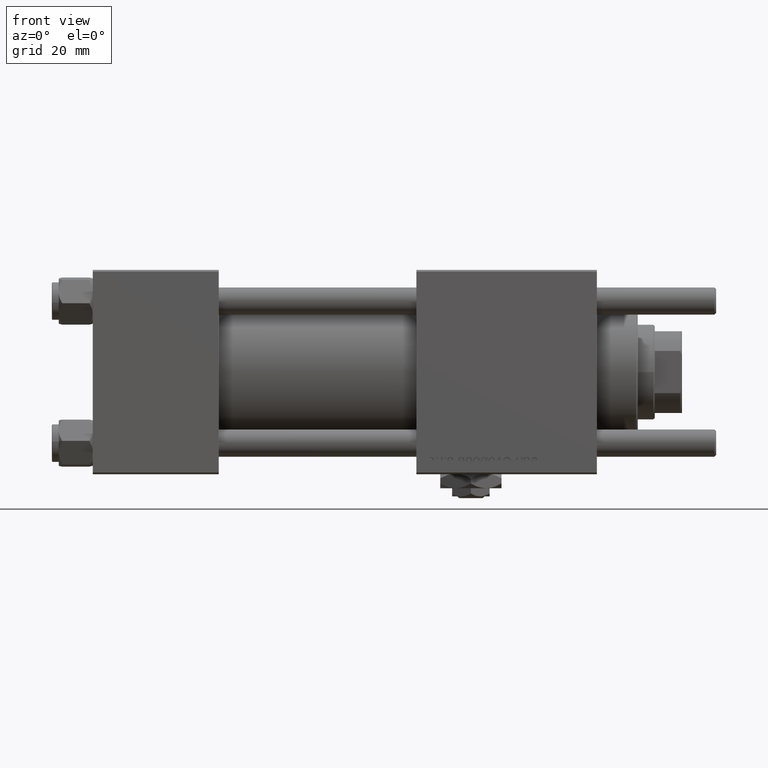
[diagram: clean part render]
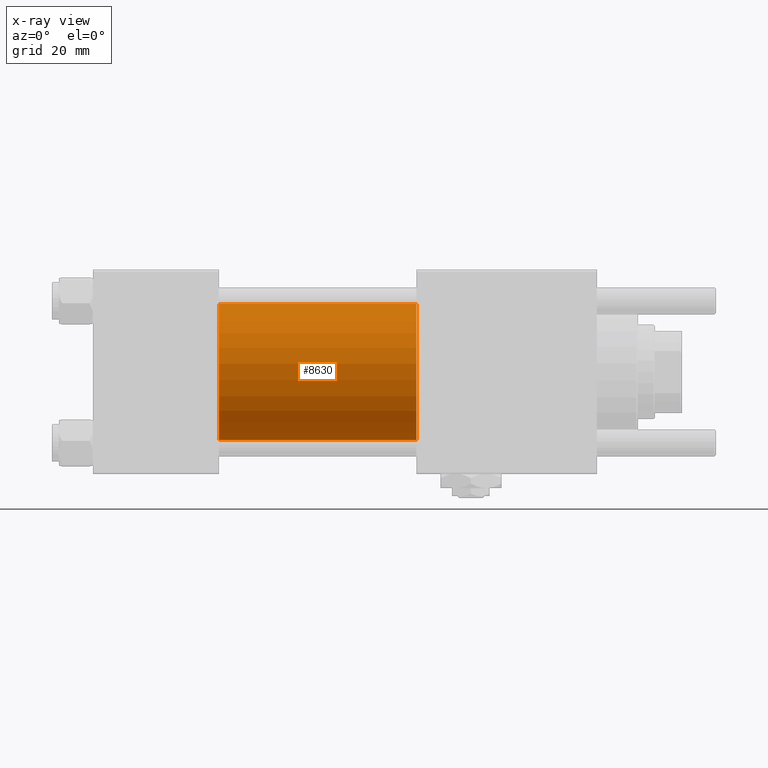
[diagram: x-ray — body ghosted, one internal face saturated and labeled with its STEP entity id]
A machine part, front view, then the same camera in x-ray: the body is ghosted and one INTERNAL B-rep face — a face not visible from any outside direction — is saturated and labeled: STEP entity #8630.
In plain terms, the highlighted cylindrical surface (partial cylindrical patch) has radius 20 mm, axis along (-1, -0, -0).
Its self-contained STEP definition (entity closure, byte-faithful):
#315 = CYLINDRICAL_SURFACE ( 'NONE', #57440, 20.00000000000000000 ) ;
#1132 = EDGE_CURVE ( 'NONE', #11039, #28172, #49827, .T. ) ;
#1426 = VERTEX_POINT ( 'NONE', #14140 ) ;
#1935 = ORIENTED_EDGE ( 'NONE', *, *, #1132, .F. ) ;
#4720 = DIRECTION ( 'NONE',  ( -1.000000000000000000, -0.000000000000000000, -0.000000000000000000 ) ) ;
#5926 = DIRECTION ( 'NONE',  ( 1.000000000000000000, 0.000000000000000000, 0.000000000000000000 ) ) ;
#5951 = CIRCLE ( 'NONE', #6971, 20.00000000000000000 ) ;
#6971 = AXIS2_PLACEMENT_3D ( 'NONE', #29022, #47155, #46578 ) ;
#7946 = EDGE_CURVE ( 'NONE', #11039, #9077, #48880, .T. ) ;
#8630 = ADVANCED_FACE ( 'NONE', ( #23736 ), #315, .F. ) ;
#9077 = VERTEX_POINT ( 'NONE', #41414 ) ;
#9267 = CARTESIAN_POINT ( 'NONE',  ( 95.00000000000000000, -2.602085213965210642E-15, 20.00000000000000000 ) ) ;
#10066 = CARTESIAN_POINT ( 'NONE',  ( 95.00000000000000000, -2.602085213965210642E-15, 20.00000000000000000 ) ) ;
#11039 = VERTEX_POINT ( 'NONE', #9267 ) ;
#13477 = CARTESIAN_POINT ( 'NONE',  ( 95.00000000000000000, -1.527916156705046464E-16, -20.00000000000000000 ) ) ;
#14140 = CARTESIAN_POINT ( 'NONE',  ( 37.00000000000000000, -1.527916156705046464E-16, -20.00000000000000000 ) ) ;
#14257 = CARTESIAN_POINT ( 'NONE',  ( 95.00000000000000000, -2.602085213965210642E-15, 0.000000000000000000 ) ) ;
#18063 = ORIENTED_EDGE ( 'NONE', *, *, #7946, .T. ) ;
#18207 = LINE ( 'NONE', #13477, #55461 ) ;
#19433 = VECTOR ( 'NONE', #4720, 1000.000000000000000 ) ;
#22646 = ORIENTED_EDGE ( 'NONE', *, *, #23790, .T. ) ;
#23736 = FACE_OUTER_BOUND ( 'NONE', #56387, .T. ) ;
#23790 = EDGE_CURVE ( 'NONE', #9077, #1426, #18207, .T. ) ;
#25826 = ORIENTED_EDGE ( 'NONE', *, *, #53823, .F. ) ;
#27587 = DIRECTION ( 'NONE',  ( -1.000000000000000000, -0.000000000000000000, -0.000000000000000000 ) ) ;
#28172 = VERTEX_POINT ( 'NONE', #49120 ) ;
#28462 = CARTESIAN_POINT ( 'NONE',  ( 95.00000000000000000, -2.602085213965210642E-15, 0.000000000000000000 ) ) ;
#29022 = CARTESIAN_POINT ( 'NONE',  ( 37.00000000000000000, -2.602085213965210642E-15, 0.000000000000000000 ) ) ;
#32045 = DIRECTION ( 'NONE',  ( 0.000000000000000000, 0.000000000000000000, 1.000000000000000000 ) ) ;
#36303 = DIRECTION ( 'NONE',  ( -1.000000000000000000, -0.000000000000000000, -0.000000000000000000 ) ) ;
#37656 = DIRECTION ( 'NONE',  ( 0.000000000000000000, 0.000000000000000000, -1.000000000000000000 ) ) ;
#41414 = CARTESIAN_POINT ( 'NONE',  ( 95.00000000000000000, -1.527916156705046464E-16, -20.00000000000000000 ) ) ;
#46578 = DIRECTION ( 'NONE',  ( 0.000000000000000000, 0.000000000000000000, -1.000000000000000000 ) ) ;
#47155 = DIRECTION ( 'NONE',  ( 1.000000000000000000, 0.000000000000000000, 0.000000000000000000 ) ) ;
#48880 = CIRCLE ( 'NONE', #51724, 20.00000000000000000 ) ;
#49120 = CARTESIAN_POINT ( 'NONE',  ( 37.00000000000000000, -2.602085213965210642E-15, 20.00000000000000000 ) ) ;
#49827 = LINE ( 'NONE', #10066, #19433 ) ;
#51724 = AXIS2_PLACEMENT_3D ( 'NONE', #28462, #5926, #37656 ) ;
#53823 = EDGE_CURVE ( 'NONE', #28172, #1426, #5951, .T. ) ;
#55461 = VECTOR ( 'NONE', #36303, 1000.000000000000000 ) ;
#56387 = EDGE_LOOP ( 'NONE', ( #18063, #22646, #25826, #1935 ) ) ;
#57440 = AXIS2_PLACEMENT_3D ( 'NONE', #14257, #27587, #32045 ) ;